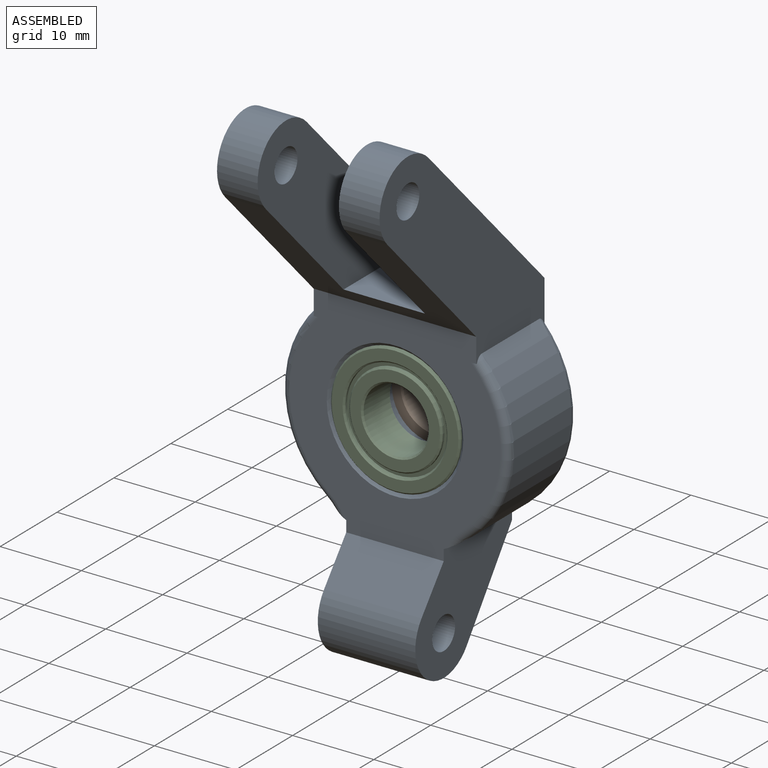
[diagram: assembled view]
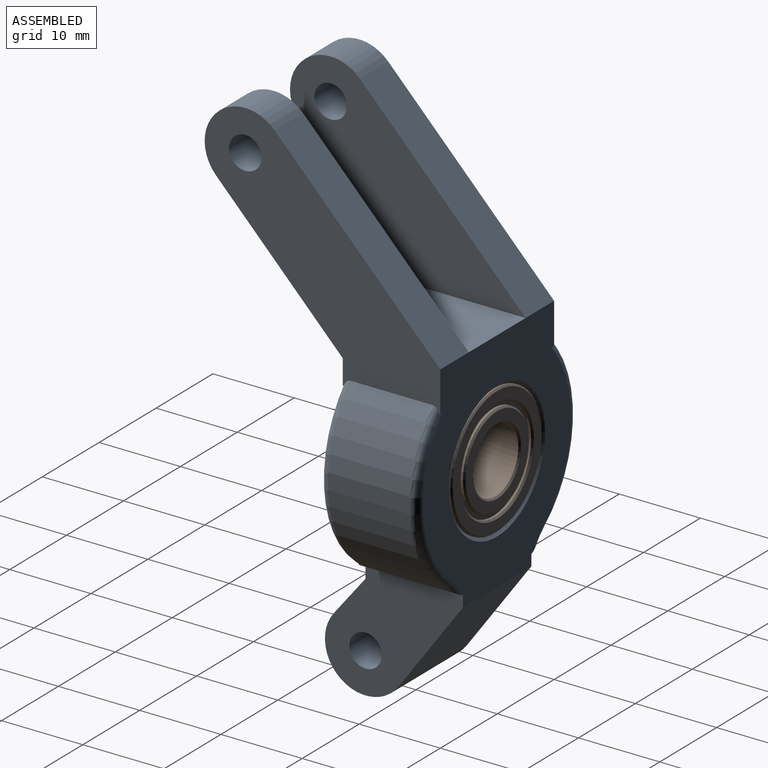
[diagram: assembled view, second angle]
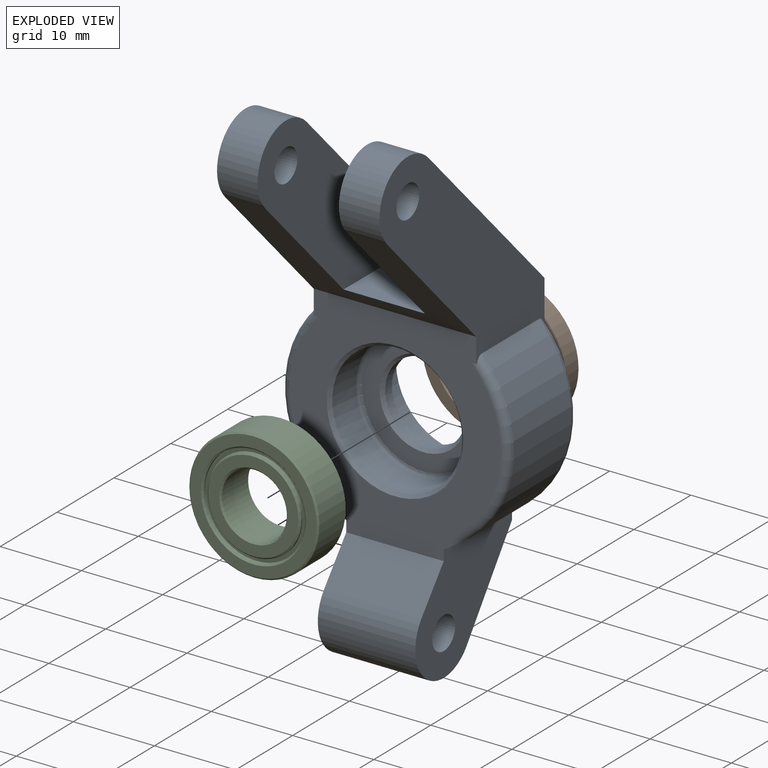
[diagram: exploded view]
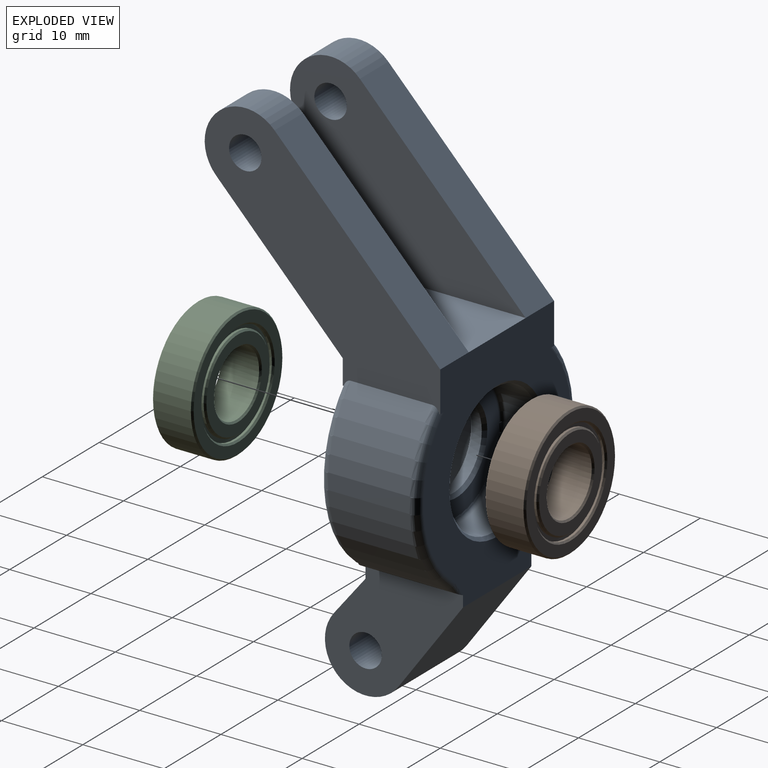
[diagram: exploded view, second angle]
ASSEMBLY  parts=3 mates=2
PART A: 47 faces, bbox 30.3x29x63.7 mm
  f0: plane 21.15x20.4mm, normal (0,0.72,0.69), area 146.9mm2, adj f1,f27,f42,f44
  f1: cylinder r=5mm len=8.6mm, axis (-1,0,0), area 78.5mm2, adj f0,f3,f42,f44
  f2: cylinder r=5mm len=8.6mm, axis (-1,0,0), area 78.5mm2, adj f3,f39,f43,f45
  f3: plane 20x16.17mm, normal (0,-0.72,-0.69), area 252mm2, adj f1,f2,f5,f42,f43,f44,f45,f46
  f4: cylinder r=2mm len=5mm, axis (-1,0,0), area 62.8mm2, adj f42,f44
  f5: plane 26.04x26mm, normal (0,-1,0), area 337.7mm2, adj f3,f6,f7,f8,f14,f16,f22,f23
  f6: cylinder r=14mm len=22.45mm, axis (0,-1,0), area 270.6mm2, adj f5,f8,f10,f11,f23,f27,f35,f43
  f7: torus R=13mm, axis (0,-1,0), area 35.4mm2, adj f5,f16,f22,f36,f42
  f8: torus R=13mm, axis (0,-1,0), area 35.4mm2, adj f5,f6,f23,f37,f43
  f9: torus R=13mm, axis (0,-1,0), area 35.4mm2, adj f16,f25,f27,f38,f42
  f10: torus R=13mm, axis (0,-1,0), area 35.4mm2, adj f6,f11,f27,f41,f43
  f11: torus R=7mm, axis (0,1,0), area 2.5mm2, adj f6,f10,f27
  f12: torus R=7.5mm, axis (0,-1,0), area 19.3mm2, adj f15,f24,f26
  f13: torus R=7.5mm, axis (0,-1,0), area 19.3mm2, adj f20,f28,f29
  f14: cone r=8.4mm half-angle=45deg, axis (0,-1,0), area 29.1mm2, adj f5,f15
  f15: cylinder r=8mm len=16mm, axis (0,-1,0), area 206.1mm2, adj f12,f14,f24
  f16: cylinder r=14mm len=22.45mm, axis (0,-1,0), area 270.6mm2, adj f5,f7,f9,f22,f25,f27,f34,f42
  f17: cone r=5.4mm half-angle=45deg, axis (0,-1,0), area 18.5mm2, adj f19,f26
  f18: cone r=8.4mm half-angle=45deg, axis (0,1,0), area 29.1mm2, adj f20,f27
  f19: cylinder r=5mm len=10mm, axis (0,-1,0), area 37.7mm2, adj f17,f21
  f20: cylinder r=8mm len=16mm, axis (0,-1,0), area 206.1mm2, adj f13,f18,f28
  f21: cone r=5.4mm half-angle=45deg, axis (0,1,0), area 18.5mm2, adj f19,f29
  f22: torus R=7mm, axis (0,-1,0), area 2.5mm2, adj f5,f7,f16
  f23: torus R=7mm, axis (0,1,0), area 2.5mm2, adj f5,f6,f8
  f24: torus R=7.5mm, axis (0,-1,0), area 19.3mm2, adj f12,f15,f26
  f25: torus R=7mm, axis (0,-1,0), area 2.5mm2, adj f9,f16,f27
  f26: plane 15x15mm, normal (0,-1,0), area 85.1mm2, adj f12,f17,f24
  f27: plane 28x26mm, normal (0,1,0), area 376.9mm2, adj f0,f6,f9,f10,f11,f16,f18,f25
  f28: torus R=7.5mm, axis (0,-1,0), area 19.3mm2, adj f13,f20,f29
  f29: plane 15x15mm, normal (0,1,0), area 85.1mm2, adj f13,f21,f28
  f30: plane 12x4.88mm, normal (0,-0.78,0.62), area 74.9mm2, adj f5,f31,f34,f35
  f31: cylinder r=5mm len=12mm, axis (-1,0,0), area 191.3mm2, adj f30,f32,f34,f35
  f32: plane 12x10.94mm, normal (0,0.81,-0.59), area 162.3mm2, adj f27,f31,f34,f35
  f33: cylinder r=2mm len=12mm, axis (-1,0,0), area 150.8mm2, adj f34,f35
  f34: plane 17x14.35mm, normal (1,0,0), area 140.9mm2, adj f5,f16,f27,f30,f31,f32,f33
  f35: plane 17x14.35mm, normal (-1,0,0), area 140.9mm2, adj f5,f6,f27,f30,f31,f32,f33
  f36: plane 0.64x0.13mm, normal (0,0,-1), area 0mm2, adj f5,f7,f42
  f37: plane 0.64x0.13mm, normal (0,0,-1), area 0mm2, adj f5,f8,f43
  f38: plane 0.64x0.13mm, normal (0,0,-1), area 0mm2, adj f9,f27,f42
  f39: plane 21.15x20.4mm, normal (0,0.72,0.69), area 146.9mm2, adj f2,f27,f43,f45
  f40: cylinder r=2mm len=5mm, axis (-1,0,0), area 62.8mm2, adj f43,f45
  f41: plane 0.64x0.13mm, normal (0,0,-1), area 0mm2, adj f10,f27,f43
  f42: plane 29x27.68mm, normal (1,0,0), area 325.2mm2, adj f0,f1,f3,f4,f5,f7,f9,f16
  f43: plane 29x27.68mm, normal (-1,0,0), area 325.2mm2, adj f2,f3,f5,f6,f8,f10,f27,f37
  f44: plane 29x22.68mm, normal (-1,0,0), area 272.3mm2, adj f0,f1,f3,f4,f46
  f45: plane 29x22.68mm, normal (1,0,0), area 272.3mm2, adj f2,f3,f39,f40,f46
  f46: plane 13.9x10mm, normal (0,0,1), area 139mm2, adj f3,f27,f44,f45
PART B: 20 faces, bbox 16x5x16 mm
  f0: cylinder r=8mm len=16mm, axis (0,-1,0), area 231.2mm2, adj f1,f2
  f1: cone r=8mm half-angle=45deg, axis (0,1,0), area 14mm2, adj f0,f14
  f2: cone r=8mm half-angle=45deg, axis (0,-1,0), area 14mm2, adj f0,f15
  f3: cone r=6.45mm half-angle=45deg, axis (0,-1,0), area 11.3mm2, adj f5,f14
  f4: cone r=6.45mm half-angle=45deg, axis (0,1,0), area 11.3mm2, adj f6,f15
  f5: cylinder r=6.25mm len=12.5mm, axis (0,-1,0), area 11.8mm2, adj f3,f16
  f6: cylinder r=6.25mm len=12.5mm, axis (0,-1,0), area 11.8mm2, adj f4,f17
  f7: cylinder r=5.75mm len=11.5mm, axis (0,-1,0), area 10.8mm2, adj f9,f16
  f8: cylinder r=5.75mm len=11.5mm, axis (0,-1,0), area 10.8mm2, adj f10,f17
  f9: cone r=5.75mm half-angle=45deg, axis (0,1,0), area 10mm2, adj f7,f18
  f10: cone r=5.75mm half-angle=45deg, axis (0,-1,0), area 10mm2, adj f8,f19
  f11: cone r=4.2mm half-angle=45deg, axis (0,-1,0), area 7.3mm2, adj f13,f18
  f12: cone r=4.2mm half-angle=45deg, axis (0,1,0), area 7.3mm2, adj f13,f19
  f13: cylinder r=4mm len=8mm, axis (0,-1,0), area 115.6mm2, adj f11,f12
  f14: plane 15.6x15.6mm, normal (0,-1,0), area 60.4mm2, adj f1,f3
  f15: plane 15.6x15.6mm, normal (0,1,0), area 60.4mm2, adj f2,f4
  f16: plane 12.5x12.5mm, normal (0,-1,0), area 18.8mm2, adj f5,f7
  f17: plane 12.5x12.5mm, normal (0,1,0), area 18.8mm2, adj f6,f8
  f18: plane 11.1x11.1mm, normal (0,-1,0), area 41.4mm2, adj f9,f11
  f19: plane 11.1x11.1mm, normal (0,1,0), area 41.4mm2, adj f10,f12
PART C: same geometry as B
PLACE A at identity fixed
PLACE B t=(0,-2.5,0)mm
PLACE C rot(axis=(1,0,0),180deg) t=(0,-9.5,0)mm
MATE revolute C.f0 <-> A.f6  axis (0,-1,0) through (0,-12,0)mm
MATE revolute B.f0 <-> A.f6  axis (0,1,0) through (0,0,0)mm
